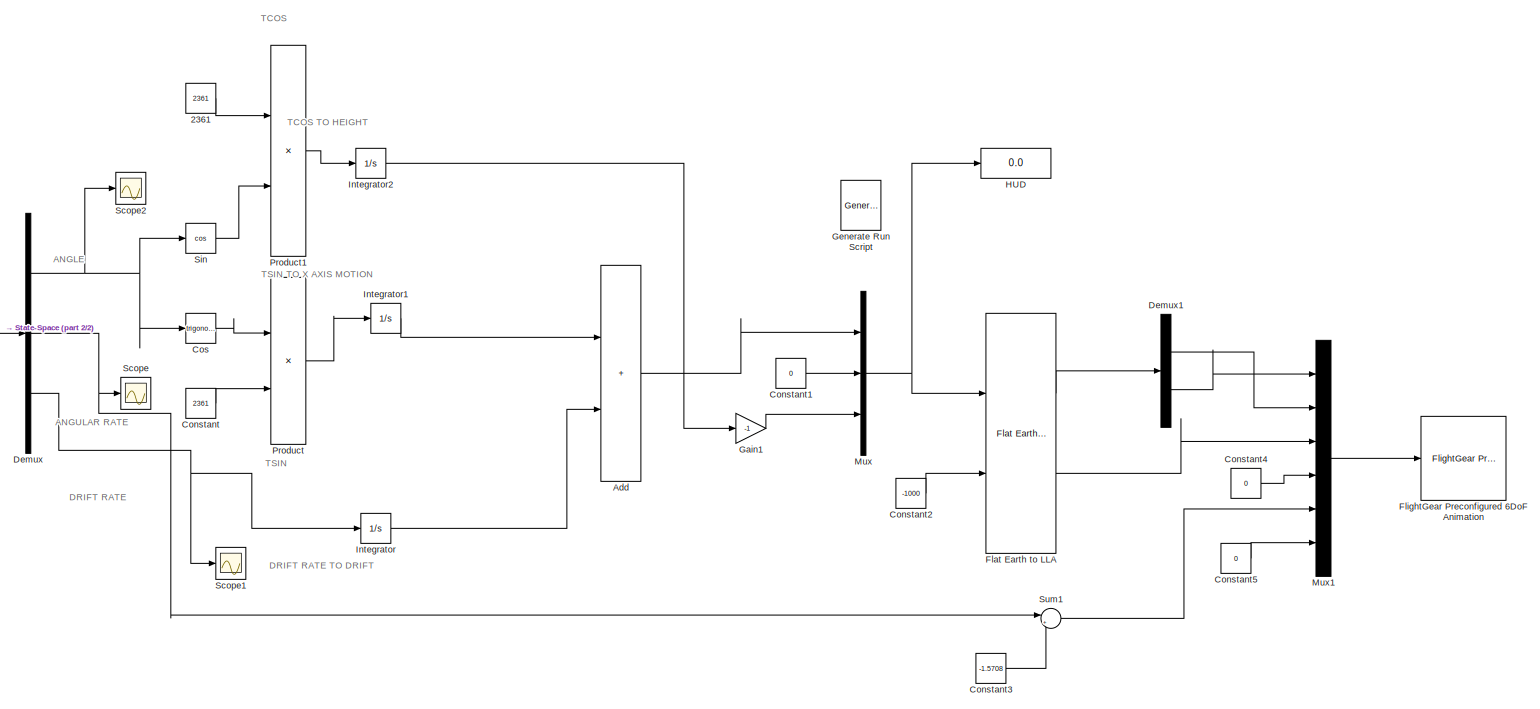
[diagram: root canvas - part 1/2, most of the canvas]
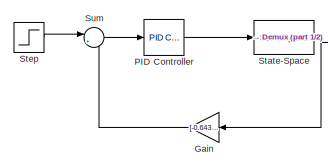
[diagram: root canvas - part 2/2, middle left region]
MODEL slx_bd2bfd475f47
KIND model
CONFIG AbsTol = auto
CONFIG EnableMultiTasking = off
CONFIG FixedStep = auto
CONFIG MaxStep = auto
CONFIG MinStep = auto
CONFIG RelTol = 1e-3
CONFIG SampleTimeConstraint = Unconstrained
CONFIG Solver = VariableStepAuto
CONFIG SolverName = VariableStepAuto
CONFIG StartTime = 0.0
CONFIG StopTime = 10.0
BLOCK [Constant] 2361
  Value = 2361
BLOCK [Sum] Add
  IconShape = rectangular
  Ports = [2, 1]
BLOCK [Constant] Constant
  Value = 2361
BLOCK [Constant] Constant1
  Value = 0
BLOCK [Constant] Constant2
  Value = -1000
BLOCK [Constant] Constant3
  Value = -1.5708
BLOCK [Constant] Constant4
  Value = 0
BLOCK [Constant] Constant5
  Value = 0
BLOCK [Trigonometry] Cos
  Ports = [1, 1]
BLOCK [Demux] Demux
  Outputs = 3
  Ports = [1, 3]
BLOCK [Demux] Demux1
  Outputs = 2
  Ports = [1, 2]
BLOCK [Reference] Flat Earth to LLA  REF=aerolibtransform2/Flat Earth to LLA
  Ports = [2, 2]
  SourceBlock = aerolibtransform2/Flat Earth to LLA
  SourceProductBaseCode = AE
  SourceType = Flat Earth to LLA
BLOCK [Reference] FlightGear Preconfigured 6DoF Animation  REF=aerolibfltsims/FlightGear
Preconfigured
6DoF Animation
  AttributesFormatString = Version Selected: %<xFlightGearVersion>
  Ports = [1]
  SourceBlock = aerolibfltsims/FlightGear\nPreconfigured\n6DoF Animation
  SourceProductBaseCode = AE
  SourceType = FlightGearQuick6DoFAnimation
BLOCK [Gain] Gain
  Gain = [-0.6435 169.6950 7.0711]
  Multiplication = Matrix(K*u)
  NameLocation = top
BLOCK [Gain] Gain1
  Gain = -1
BLOCK [Reference] Generate Run Script  REF=aerolibfltsims/Generate
Run Script
  Ports = []
  SourceBlock = aerolibfltsims/Generate\nRun Script
  SourceProductBaseCode = AE
  SourceType = Generate FlightGear Run Script
BLOCK [Display] HUD
  Decimation = 1
  Ports = [1]
BLOCK [Integrator] Integrator
  Ports = [1, 1]
BLOCK [Integrator] Integrator1
  Ports = [1, 1]
BLOCK [Integrator] Integrator2
  Ports = [1, 1]
BLOCK [Mux] Mux
  DisplayOption = bar
  Inputs = 3
  Ports = [3, 1]
BLOCK [Mux] Mux1
  DisplayOption = bar
  Inputs = 6
  Ports = [6, 1]
BLOCK [Reference] PID Controller  REF=simulink/Continuous/PID Controller
  Ports = [1, 1]
  SourceBlock = simulink/Continuous/PID Controller
  SourceProductBaseCode = SL
  SourceType = PID 1dof
BLOCK [Product] Product
  Ports = [2, 1]
BLOCK [Product] Product1
  Ports = [2, 1]
BLOCK [Scope] Scope
  Floating = off
  NumInputPorts = 1
  Ports = [1]
  ScopeSpecificationString = Simulink.scopes.TimeScopeBlockCfg('CurrentConfiguration', extmgr.ConfigurationSet(extmgr.Configuration('Core','General UI',true),extmgr.Configuration('Core','Source UI',true),extmgr.Configuration('Sources','WiredSimulink',true,'DataLoggingVariableName','ScopeData1'),extmgr.Configuration('Visuals','Time Domain',true,'SerializedDisplays',{struct('MinYLimReal','-0.13633','MaxYLimReal','0.01557','YLab...<+1366ch>
BLOCK [Scope] Scope1
  Floating = off
  NumInputPorts = 1
  Ports = [1]
  ScopeSpecificationString = Simulink.scopes.TimeScopeBlockCfg('CurrentConfiguration', extmgr.ConfigurationSet(extmgr.Configuration('Core','General UI',true),extmgr.Configuration('Core','Source UI',true),extmgr.Configuration('Sources','WiredSimulink',true,'DataLoggingVariableName','ScopeData2'),extmgr.Configuration('Visuals','Time Domain',true,'SerializedDisplays',{struct('MinYLimReal','-25.71336','MaxYLimReal','2.85704','YLa...<+1370ch>
BLOCK [Scope] Scope2
  Floating = off
  NumInputPorts = 1
  Ports = [1]
  ScopeSpecificationString = Simulink.scopes.TimeScopeBlockCfg('CurrentConfiguration', extmgr.ConfigurationSet(extmgr.Configuration('Core','General UI',true),extmgr.Configuration('Core','Source UI',true),extmgr.Configuration('Sources','WiredSimulink',true),extmgr.Configuration('Visuals','Time Domain',true,'SerializedDisplays',{struct('MinYLimReal','0.00472','MaxYLimReal','0.2217','YLabelReal','','MinYLimMag','0.00472','MaxYLi...<+1321ch>
BLOCK [Trigonometry] Sin
  Operator = cos
  Ports = [1, 1]
BLOCK [StateSpace] State-Space
  A = A2
  B = B2
  C = C2
  ContinuousStateAttributes = {'AoA','Pitch_Rate','Pitch_Angle'}
  D = D2
  InitialCondition = 0
  Ports = [1, 1]
BLOCK [Step] Step
  SampleTime = 0
BLOCK [Sum] Sum
  Inputs = |+-
  Ports = [2, 1]
BLOCK [Sum] Sum1
  Inputs = |+-
  Ports = [2, 1]
ANNOTATION (root): ANGLE
ANNOTATION (root): ANGULAR RATE
ANNOTATION (root): DRIFT RATE
ANNOTATION (root): DRIFT RATE TO DRIFT
ANNOTATION (root): TCOS
ANNOTATION (root): TCOS TO HEIGHT
ANNOTATION (root): TSIN
ANNOTATION (root): TSIN TO X AXIS MOTION
LINE 2361:1 -> Product1:1
LINE Add:1 -> Mux:1
LINE Constant1:1 -> Mux:2
LINE Constant2:1 -> Flat Earth to LLA:2
LINE Constant3:1 -> Sum1:2
LINE Constant4:1 -> Mux1:4
LINE Constant5:1 -> Mux1:6
LINE Constant:1 -> Product:2
LINE Cos:1 -> Product:1
LINE Demux1:1 -> Mux1:2
LINE Demux1:2 -> Mux1:1
NET Demux:1 -> Cos:1, Scope2:1, Sin:1
NET Demux:2 -> Scope:1, Sum1:1
NET Demux:3 -> Integrator:1, Scope1:1
LINE Flat Earth to LLA:1 -> Demux1:1
LINE Flat Earth to LLA:2 -> Mux1:3
LINE Gain1:1 -> Mux:3
LINE Gain:1 -> Sum:2
LINE Integrator1:1 -> Add:1
LINE Integrator2:1 -> Gain1:1
LINE Integrator:1 -> Add:2
LINE Mux1:1 -> FlightGear Preconfigured 6DoF Animation:1
NET Mux:1 -> Flat Earth to LLA:1, HUD:1
LINE PID Controller:1 -> State-Space:1
LINE Product1:1 -> Integrator2:1
LINE Product:1 -> Integrator1:1
LINE Sin:1 -> Product1:2
NET State-Space:1 -> Demux:1, Gain:1
LINE Step:1 -> Sum:1
LINE Sum1:1 -> Mux1:5
LINE Sum:1 -> PID Controller:1
note: NET lines group one-source signal fan-out (src -> all destinations, sorted); 1:1 wires keep LINE
